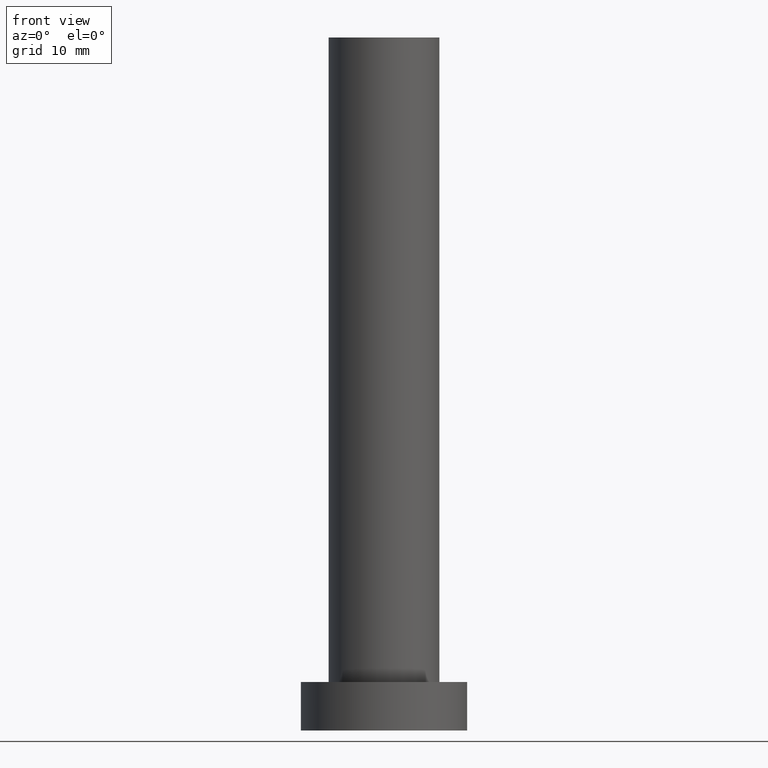
[diagram: clean part render]
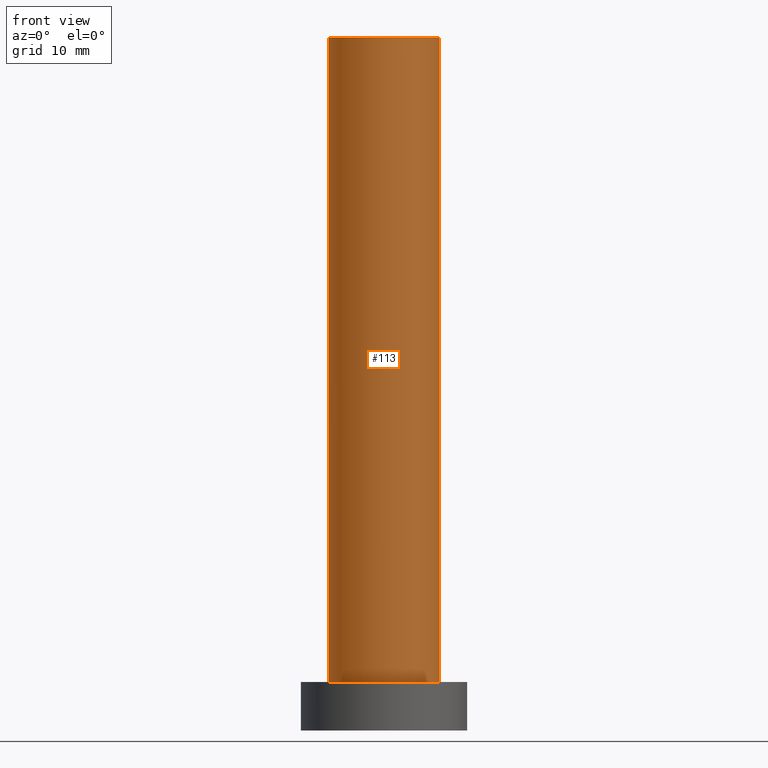
[diagram: same view with one face highlighted and labeled with its STEP entity id]
A machine part, front view. The second image highlights one B-rep face of the part: STEP entity #113.
In plain terms, the highlighted cylindrical surface (partial cylindrical patch) has radius 8 mm, axis along (-0, -0, -1).
Its self-contained STEP definition (entity closure, byte-faithful):
#5 = CARTESIAN_POINT ( 'NONE',  ( 0.000000000000000000, 0.000000000000000000, 7.000000000000000000 ) ) ;
#6 = AXIS2_PLACEMENT_3D ( 'NONE', #97, #24, #198 ) ;
#9 = LINE ( 'NONE', #162, #233 ) ;
#24 = DIRECTION ( 'NONE',  ( -0.000000000000000000, -0.000000000000000000, -1.000000000000000000 ) ) ;
#25 = DIRECTION ( 'NONE',  ( -0.000000000000000000, -0.000000000000000000, -1.000000000000000000 ) ) ;
#41 = DIRECTION ( 'NONE',  ( 1.000000000000000000, 0.000000000000000000, 0.000000000000000000 ) ) ;
#45 = DIRECTION ( 'NONE',  ( 1.000000000000000000, 0.000000000000000000, 0.000000000000000000 ) ) ;
#46 = ORIENTED_EDGE ( 'NONE', *, *, #148, .T. ) ;
#47 = DIRECTION ( 'NONE',  ( 0.000000000000000000, 0.000000000000000000, 1.000000000000000000 ) ) ;
#49 = VERTEX_POINT ( 'NONE', #150 ) ;
#51 = VERTEX_POINT ( 'NONE', #238 ) ;
#57 = EDGE_LOOP ( 'NONE', ( #101, #118, #46, #161 ) ) ;
#68 = DIRECTION ( 'NONE',  ( -0.000000000000000000, -0.000000000000000000, -1.000000000000000000 ) ) ;
#83 = CARTESIAN_POINT ( 'NONE',  ( -8.000000000000000000, 0.000000000000000000, 7.000000000000000000 ) ) ;
#85 = EDGE_CURVE ( 'NONE', #244, #51, #208, .T. ) ;
#87 = AXIS2_PLACEMENT_3D ( 'NONE', #239, #102, #41 ) ;
#93 = VECTOR ( 'NONE', #25, 1000.000000000000000 ) ;
#95 = AXIS2_PLACEMENT_3D ( 'NONE', #5, #47, #45 ) ;
#97 = CARTESIAN_POINT ( 'NONE',  ( 0.000000000000000000, 0.000000000000000000, 100.0000000000000000 ) ) ;
#100 = FACE_OUTER_BOUND ( 'NONE', #57, .T. ) ;
#101 = ORIENTED_EDGE ( 'NONE', *, *, #245, .F. ) ;
#102 = DIRECTION ( 'NONE',  ( 0.000000000000000000, 0.000000000000000000, 1.000000000000000000 ) ) ;
#113 = ADVANCED_FACE ( 'NONE', ( #100 ), #127, .T. ) ;
#118 = ORIENTED_EDGE ( 'NONE', *, *, #180, .F. ) ;
#127 = CYLINDRICAL_SURFACE ( 'NONE', #6, 8.000000000000000000 ) ;
#148 = EDGE_CURVE ( 'NONE', #225, #244, #157, .T. ) ;
#150 = CARTESIAN_POINT ( 'NONE',  ( 8.000000000000000000, 9.797174393178823685E-16, 100.0000000000000000 ) ) ;
#157 = LINE ( 'NONE', #240, #93 ) ;
#161 = ORIENTED_EDGE ( 'NONE', *, *, #85, .T. ) ;
#162 = CARTESIAN_POINT ( 'NONE',  ( 8.000000000000000000, 9.797174393178823685E-16, 100.0000000000000000 ) ) ;
#164 = CIRCLE ( 'NONE', #87, 8.000000000000000000 ) ;
#180 = EDGE_CURVE ( 'NONE', #225, #49, #164, .T. ) ;
#198 = DIRECTION ( 'NONE',  ( -1.000000000000000000, 0.000000000000000000, 0.000000000000000000 ) ) ;
#201 = CARTESIAN_POINT ( 'NONE',  ( -8.000000000000000000, 0.000000000000000000, 100.0000000000000000 ) ) ;
#208 = CIRCLE ( 'NONE', #95, 8.000000000000000000 ) ;
#225 = VERTEX_POINT ( 'NONE', #201 ) ;
#233 = VECTOR ( 'NONE', #68, 1000.000000000000000 ) ;
#238 = CARTESIAN_POINT ( 'NONE',  ( 8.000000000000000000, 9.797174393178823685E-16, 7.000000000000000000 ) ) ;
#239 = CARTESIAN_POINT ( 'NONE',  ( 0.000000000000000000, 0.000000000000000000, 100.0000000000000000 ) ) ;
#240 = CARTESIAN_POINT ( 'NONE',  ( -8.000000000000000000, 0.000000000000000000, 100.0000000000000000 ) ) ;
#244 = VERTEX_POINT ( 'NONE', #83 ) ;
#245 = EDGE_CURVE ( 'NONE', #49, #51, #9, .T. ) ;